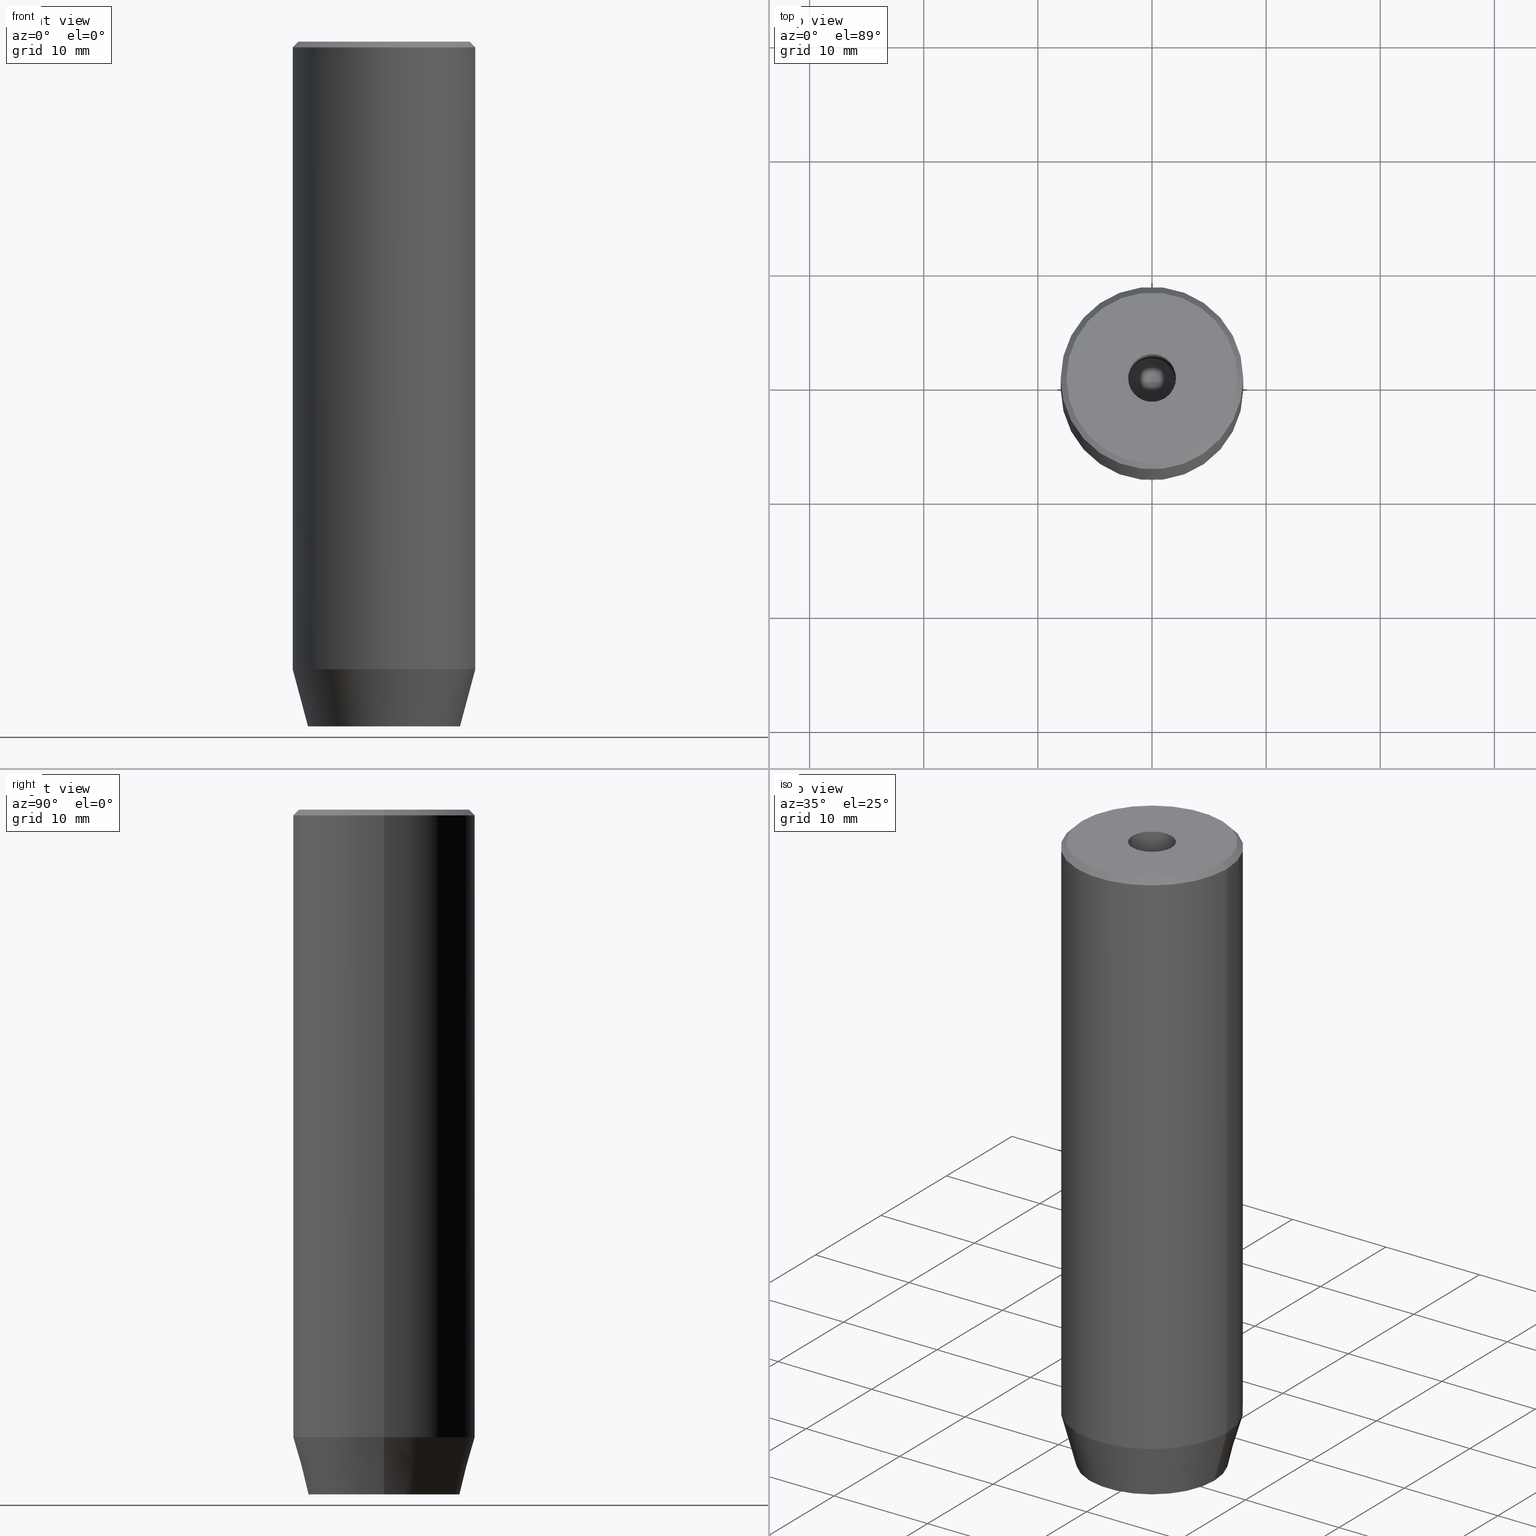
[diagram: canonical four-view strip — front | top / right | iso, engineering-drawing reading convention]
A machine part, canonical four-view strip (front | top / right | iso — engineering-drawing reading convention). The complete STEP part file that produces these views, byte-faithful:
ISO-10303-21;
HEADER;
FILE_DESCRIPTION (( 'STEP AP203' ),
    '1' );
FILE_NAME ('164c.STEP',
    '2024-01-02T20:40:58',
    ( '' ),
    ( '' ),
    'SwSTEP 2.0',
    'SolidWorks 2019',
    '' );
FILE_SCHEMA (( 'CONFIG_CONTROL_DESIGN' ));
ENDSEC;

DATA;
#1 = EDGE_LOOP ( 'NONE', ( #491, #107, #47, #19 ) ) ;
#2 = ADVANCED_FACE ( 'NONE', ( #153 ), #558, .F. ) ;
#3 = AXIS2_PLACEMENT_3D ( 'NONE', #354, #356, #173 ) ;
#4 = ORIENTED_EDGE ( 'NONE', *, *, #541, .T. ) ;
#5 = DIRECTION ( 'NONE',  ( -1.000000000000000000, -2.503857664561933362E-16, 0.000000000000000000 ) ) ;
#6 = ORIENTED_EDGE ( 'NONE', *, *, #259, .T. ) ;
#7 = CARTESIAN_POINT ( 'NONE',  ( -3.000000000000000444, -7.511572993685800087E-16, -57.20000000000000284 ) ) ;
#8 = ORIENTED_EDGE ( 'NONE', *, *, #297, .T. ) ;
#9 = APPROVAL_ROLE ( '' ) ;
#10 = CARTESIAN_POINT ( 'NONE',  ( 0.000000000000000000, 0.000000000000000000, -55.00000000000000000 ) ) ;
#11 = AXIS2_PLACEMENT_3D ( 'NONE', #179, #310, #532 ) ;
#12 = VECTOR ( 'NONE', #70, 1000.000000000000000 ) ;
#13 = PRODUCT_DEFINITION_SHAPE ( 'NONE', 'NONE',  #561 ) ;
#14 = ORIENTED_EDGE ( 'NONE', *, *, #227, .F. ) ;
#15 = PLANE ( 'NONE',  #400 ) ;
#16 = MANIFOLD_SOLID_BREP ( 'Vrt�k z�vitn�ku pro M5 z�vit1', #268 ) ;
#17 = COORDINATED_UNIVERSAL_TIME_OFFSET ( 1, 0, .AHEAD. ) ;
#18 = CARTESIAN_POINT ( 'NONE',  ( 0.000000000000000000, 0.000000000000000000, -20.00000000000000000 ) ) ;
#19 = ORIENTED_EDGE ( 'NONE', *, *, #21, .F. ) ;
#20 =( NAMED_UNIT ( * ) PLANE_ANGLE_UNIT ( ) SI_UNIT ( $, .RADIAN. ) );
#21 = EDGE_CURVE ( 'NONE', #264, #63, #364, .T. ) ;
#22 = AXIS2_PLACEMENT_3D ( 'NONE', #384, #195, #423 ) ;
#23 = LINE ( 'NONE', #113, #506 ) ;
#24 = APPROVAL_ROLE ( '' ) ;
#25 = LINE ( 'NONE', #379, #577 ) ;
#26 = CARTESIAN_POINT ( 'NONE',  ( 3.000000000000000000, 0.000000000000000000, -60.00000000000000000 ) ) ;
#27 = ORGANIZATION ( 'NEUR�EN�', 'NEUR�EN�', '' ) ;
#28 = ORIENTED_EDGE ( 'NONE', *, *, #515, .F. ) ;
#29 = EDGE_CURVE ( 'NONE', #323, #316, #23, .T. ) ;
#30 = VERTEX_POINT ( 'NONE', #569 ) ;
#31 = DIRECTION ( 'NONE',  ( 0.8660254037844385966, -0.5000000000000001110, 0.000000000000000000 ) ) ;
#32 = CIRCLE ( 'NONE', #300, 8.000000000000000000 ) ;
#33 = CARTESIAN_POINT ( 'NONE',  ( -3.000000000000000000, -1.732050807568877859, -57.20000000000000284 ) ) ;
#34 = CC_DESIGN_APPROVAL ( #101, ( #561 ) ) ;
#35 = COORDINATED_UNIVERSAL_TIME_OFFSET ( 1, 0, .AHEAD. ) ;
#36 = CARTESIAN_POINT ( 'NONE',  ( -1.500000000000000666, -2.598076211353316456, -57.20000000000000284 ) ) ;
#37 = ORIENTED_EDGE ( 'NONE', *, *, #253, .T. ) ;
#38 = ADVANCED_FACE ( 'NONE', ( #391 ), #166, .T. ) ;
#39 = CARTESIAN_POINT ( 'NONE',  ( -1.084202172485504434E-16, 3.464101615137754830, -57.20000000000000284 ) ) ;
#40 = EDGE_LOOP ( 'NONE', ( #500, #14, #545, #66 ) ) ;
#41 = AXIS2_PLACEMENT_3D ( 'NONE', #222, #122, #406 ) ;
#42 = AXIS2_PLACEMENT_3D ( 'NONE', #523, #172, #262 ) ;
#43 = APPROVAL ( #135, 'NEUR�EN�' ) ;
#44 = VERTEX_POINT ( 'NONE', #521 ) ;
#45 = LOCAL_TIME ( 21, 40, 58.00000000000000000, #53 ) ;
#46 = EDGE_CURVE ( 'NONE', #416, #539, #290, .T. ) ;
#47 = ORIENTED_EDGE ( 'NONE', *, *, #335, .T. ) ;
#48 = DIRECTION ( 'NONE',  ( -0.8660254037844385966, 0.5000000000000001110, 0.000000000000000000 ) ) ;
#49 = EDGE_LOOP ( 'NONE', ( #360, #341, #455, #183, #357, #366 ) ) ;
#50 = VECTOR ( 'NONE', #182, 1000.000000000000000 ) ;
#51 = AXIS2_PLACEMENT_3D ( 'NONE', #96, #415, #99 ) ;
#52 = ORIENTED_EDGE ( 'NONE', *, *, #480, .T. ) ;
#53 = COORDINATED_UNIVERSAL_TIME_OFFSET ( 1, 0, .AHEAD. ) ;
#54 =( LENGTH_UNIT ( ) NAMED_UNIT ( * ) SI_UNIT ( .MILLI., .METRE. ) );
#55 = CARTESIAN_POINT ( 'NONE',  ( 0.000000000000000000, 0.000000000000000000, -55.00000000000000000 ) ) ;
#56 = ORIENTED_EDGE ( 'NONE', *, *, #215, .T. ) ;
#57 = APPROVAL_STATUS ( 'not_yet_approved' ) ;
#58 = EDGE_CURVE ( 'NONE', #139, #264, #296, .T. ) ;
#59 = EDGE_LOOP ( 'NONE', ( #371, #131, #149, #116 ) ) ;
#60 = DIRECTION ( 'NONE',  ( 1.000000000000000000, 0.000000000000000000, 0.000000000000000000 ) ) ;
#61 = CARTESIAN_POINT ( 'NONE',  ( 0.000000000000000000, 0.000000000000000000, -60.00000000000000000 ) ) ;
#62 = VECTOR ( 'NONE', #133, 1000.000000000000000 ) ;
#63 = VERTEX_POINT ( 'NONE', #337 ) ;
#64 = DATE_TIME_ROLE ( 'creation_date' ) ;
#65 = CARTESIAN_POINT ( 'NONE',  ( 3.000000000000000000, -1.732050807568876527, -60.00000000000000000 ) ) ;
#66 = ORIENTED_EDGE ( 'NONE', *, *, #67, .T. ) ;
#67 = EDGE_CURVE ( 'NONE', #316, #487, #81, .T. ) ;
#68 = CALENDAR_DATE ( 2024, 2, 1 ) ;
#69 = DIRECTION ( 'NONE',  ( 0.7071067811865524577, 8.659560562354993255E-17, -0.7071067811865426878 ) ) ;
#70 = DIRECTION ( 'NONE',  ( 0.000000000000000000, -1.000000000000000000, 0.000000000000000000 ) ) ;
#71 = DIRECTION ( 'NONE',  ( -0.000000000000000000, 0.000000000000000000, -1.000000000000000000 ) ) ;
#72 = PERSON_AND_ORGANIZATION_ROLE ( 'design_owner' ) ;
#73 = DIRECTION ( 'NONE',  ( 1.000000000000000000, 0.000000000000000000, 0.000000000000000000 ) ) ;
#74 = CIRCLE ( 'NONE', #465, 2.099999999999998757 ) ;
#75 = CARTESIAN_POINT ( 'NONE',  ( 3.000000000000000000, 0.000000000000000000, -57.20000000000000284 ) ) ;
#76 = ORIENTED_EDGE ( 'NONE', *, *, #353, .T. ) ;
#77 = ADVANCED_FACE ( 'NONE', ( #472 ), #201, .F. ) ;
#78 = ORIENTED_EDGE ( 'NONE', *, *, #177, .F. ) ;
#79 = CARTESIAN_POINT ( 'NONE',  ( 3.000000000000000000, 0.000000000000000000, -57.20000000000000284 ) ) ;
#80 = DIRECTION ( 'NONE',  ( -0.5000000000000001110, -0.8660254037844385966, 0.000000000000000000 ) ) ;
#81 = CIRCLE ( 'NONE', #194, 2.099999999999998757 ) ;
#82 = VECTOR ( 'NONE', #339, 1000.000000000000000 ) ;
#83 = CARTESIAN_POINT ( 'NONE',  ( -3.000000000000000888, 1.732050807568876527, -57.20000000000000284 ) ) ;
#84 = EDGE_CURVE ( 'NONE', #44, #117, #170, .T. ) ;
#85 = ORIENTED_EDGE ( 'NONE', *, *, #311, .F. ) ;
#86 = CARTESIAN_POINT ( 'NONE',  ( -8.000000000000000000, 9.797174393178825657E-16, 0.000000000000000000 ) ) ;
#87 = DIRECTION ( 'NONE',  ( -0.000000000000000000, -0.000000000000000000, -1.000000000000000000 ) ) ;
#88 = VERTEX_POINT ( 'NONE', #575 ) ;
#89 = VECTOR ( 'NONE', #552, 1000.000000000000000 ) ;
#90 = EDGE_CURVE ( 'NONE', #63, #264, #32, .T. ) ;
#91 = DIRECTION ( 'NONE',  ( -0.000000000000000000, -0.000000000000000000, 1.000000000000000000 ) ) ;
#92 = FACE_OUTER_BOUND ( 'NONE', #584, .T. ) ;
#93 = ORIENTED_EDGE ( 'NONE', *, *, #327, .T. ) ;
#94 = DIRECTION ( 'NONE',  ( -0.000000000000000000, -0.000000000000000000, -1.000000000000000000 ) ) ;
#95 = DIRECTION ( 'NONE',  ( 0.8660254037844387076, 0.4999999999999999445, 0.000000000000000000 ) ) ;
#96 = CARTESIAN_POINT ( 'NONE',  ( 0.000000000000000000, 0.000000000000000000, -20.00000000000000000 ) ) ;
#97 = EDGE_LOOP ( 'NONE', ( #76, #103, #37, #147, #52, #563 ) ) ;
#98 = CARTESIAN_POINT ( 'NONE',  ( -7.500000000000007105, 0.000000000000000000, 0.000000000000000000 ) ) ;
#99 = DIRECTION ( 'NONE',  ( 1.000000000000000000, 0.000000000000000000, 0.000000000000000000 ) ) ;
#100 = VERTEX_POINT ( 'NONE', #39 ) ;
#101 = APPROVAL ( #57, 'NEUR�EN�' ) ;
#102 = APPROVAL_PERSON_ORGANIZATION ( #123, #43, #531 ) ;
#103 = ORIENTED_EDGE ( 'NONE', *, *, #425, .T. ) ;
#104 = CARTESIAN_POINT ( 'NONE',  ( 0.000000000000000000, 0.000000000000000000, 0.000000000000000000 ) ) ;
#105 = CC_DESIGN_PERSON_AND_ORGANIZATION_ASSIGNMENT ( #568, #164, ( #272 ) ) ;
#106 = DIRECTION ( 'NONE',  ( -0.000000000000000000, -0.000000000000000000, 1.000000000000000000 ) ) ;
#107 = ORIENTED_EDGE ( 'NONE', *, *, #522, .F. ) ;
#108 = ADVANCED_FACE ( 'NONE', ( #393 ), #349, .F. ) ;
#109 = VECTOR ( 'NONE', #494, 1000.000000000000114 ) ;
#110 = DIRECTION ( 'NONE',  ( -0.8660254037844385966, -0.5000000000000001110, 0.000000000000000000 ) ) ;
#111 = APPLICATION_PROTOCOL_DEFINITION ( 'international standard', 'config_control_design', 1994, #447 ) ;
#112 = LINE ( 'NONE', #468, #203 ) ;
#113 = CARTESIAN_POINT ( 'NONE',  ( 2.099999999999997424, 0.000000000000000000, 0.000000000000000000 ) ) ;
#114 =( NAMED_UNIT ( * ) SI_UNIT ( $, .STERADIAN. ) SOLID_ANGLE_UNIT ( ) );
#115 = PERSON_AND_ORGANIZATION ( #554, #27 ) ;
#116 = ORIENTED_EDGE ( 'NONE', *, *, #29, .F. ) ;
#117 = VERTEX_POINT ( 'NONE', #582 ) ;
#118 = LINE ( 'NONE', #460, #89 ) ;
#119 = AXIS2_PLACEMENT_3D ( 'NONE', #18, #559, #155 ) ;
#120 = ORIENTED_EDGE ( 'NONE', *, *, #21, .T. ) ;
#121 = DATE_AND_TIME ( #68, #553 ) ;
#122 = DIRECTION ( 'NONE',  ( -0.4999999999999999445, 0.8660254037844387076, 0.000000000000000000 ) ) ;
#123 = PERSON_AND_ORGANIZATION ( #554, #27 ) ;
#124 = ADVANCED_FACE ( 'NONE', ( #402 ), #218, .F. ) ;
#125 = DIRECTION ( 'NONE',  ( 0.8660254037844385966, -0.5000000000000001110, 0.000000000000000000 ) ) ;
#126 = AXIS2_PLACEMENT_3D ( 'NONE', #10, #334, #152 ) ;
#127 =( GEOMETRIC_REPRESENTATION_CONTEXT ( 3 ) GLOBAL_UNCERTAINTY_ASSIGNED_CONTEXT ( ( #211 ) ) GLOBAL_UNIT_ASSIGNED_CONTEXT ( ( #54, #20, #114 ) ) REPRESENTATION_CONTEXT ( 'NONE', 'WORKASPACE' ) );
#128 = ORIENTED_EDGE ( 'NONE', *, *, #551, .T. ) ;
#129 = FACE_OUTER_BOUND ( 'NONE', #557, .T. ) ;
#130 = CYLINDRICAL_SURFACE ( 'NONE', #154, 2.099999999999997424 ) ;
#131 = ORIENTED_EDGE ( 'NONE', *, *, #533, .T. ) ;
#132 = ADVANCED_FACE ( 'NONE', ( #359 ), #437, .F. ) ;
#133 = DIRECTION ( 'NONE',  ( -0.000000000000000000, -0.000000000000000000, 1.000000000000000000 ) ) ;
#134 = CARTESIAN_POINT ( 'NONE',  ( 0.000000000000000000, 0.000000000000000000, -57.20000000000000284 ) ) ;
#135 = APPROVAL_STATUS ( 'not_yet_approved' ) ;
#136 = ORIENTED_EDGE ( 'NONE', *, *, #551, .F. ) ;
#137 = VECTOR ( 'NONE', #318, 1000.000000000000000 ) ;
#138 = CC_DESIGN_PERSON_AND_ORGANIZATION_ASSIGNMENT ( #115, #432, ( #285 ) ) ;
#139 = VERTEX_POINT ( 'NONE', #397 ) ;
#140 = CARTESIAN_POINT ( 'NONE',  ( -1.499999999999999556, 2.598076211353316012, -57.20000000000000284 ) ) ;
#141 = ORIENTED_EDGE ( 'NONE', *, *, #90, .F. ) ;
#142 = CARTESIAN_POINT ( 'NONE',  ( 8.000000000000000000, 0.000000000000000000, -55.00000000000000000 ) ) ;
#143 = EDGE_CURVE ( 'NONE', #383, #229, #176, .T. ) ;
#144 = ORIENTED_EDGE ( 'NONE', *, *, #394, .T. ) ;
#145 = VECTOR ( 'NONE', #94, 1000.000000000000000 ) ;
#146 = APPROVAL ( #294, 'NEUR�EN�' ) ;
#147 = ORIENTED_EDGE ( 'NONE', *, *, #46, .T. ) ;
#148 = CARTESIAN_POINT ( 'NONE',  ( 0.000000000000000000, 0.000000000000000000, 0.000000000000000000 ) ) ;
#149 = ORIENTED_EDGE ( 'NONE', *, *, #435, .T. ) ;
#150 = PERSON_AND_ORGANIZATION_ROLE ( 'creator' ) ;
#151 = ADVANCED_FACE ( 'NONE', ( #576 ), #291, .T. ) ;
#152 = DIRECTION ( 'NONE',  ( 1.000000000000000000, 0.000000000000000000, 0.000000000000000000 ) ) ;
#153 = FACE_OUTER_BOUND ( 'NONE', #159, .T. ) ;
#154 = AXIS2_PLACEMENT_3D ( 'NONE', #275, #232, #587 ) ;
#155 = DIRECTION ( 'NONE',  ( 1.000000000000000000, 0.000000000000000000, 0.000000000000000000 ) ) ;
#156 = ORIENTED_EDGE ( 'NONE', *, *, #58, .T. ) ;
#157 = DIRECTION ( 'NONE',  ( 0.000000000000000000, 0.000000000000000000, 1.000000000000000000 ) ) ;
#158 = APPROVAL_PERSON_ORGANIZATION ( #427, #146, #24 ) ;
#159 = EDGE_LOOP ( 'NONE', ( #555, #517, #398 ) ) ;
#160 = ORIENTED_EDGE ( 'NONE', *, *, #46, .F. ) ;
#161 = ADVANCED_FACE ( 'NONE', ( #527 ), #130, .F. ) ;
#162 = VERTEX_POINT ( 'NONE', #192 ) ;
#163 = DIRECTION ( 'NONE',  ( 1.000000000000000000, 0.000000000000000000, 0.000000000000000000 ) ) ;
#164 = PERSON_AND_ORGANIZATION_ROLE ( 'creator' ) ;
#165 = VECTOR ( 'NONE', #581, 1000.000000000000000 ) ;
#166 = CYLINDRICAL_SURFACE ( 'NONE', #548, 8.000000000000000000 ) ;
#167 = APPROVAL_PERSON_ORGANIZATION ( #332, #101, #9 ) ;
#168 = DIRECTION ( 'NONE',  ( 1.000000000000000000, 0.000000000000000000, 0.000000000000000000 ) ) ;
#169 = EDGE_CURVE ( 'NONE', #416, #219, #370, .T. ) ;
#170 = LINE ( 'NONE', #261, #213 ) ;
#171 = CC_DESIGN_DATE_AND_TIME_ASSIGNMENT ( #524, #396, ( #285 ) ) ;
#172 = DIRECTION ( 'NONE',  ( -0.000000000000000000, -0.000000000000000000, 1.000000000000000000 ) ) ;
#173 = DIRECTION ( 'NONE',  ( -1.000000000000000000, 0.000000000000000000, 0.000000000000000000 ) ) ;
#174 = AXIS2_PLACEMENT_3D ( 'NONE', #148, #330, #376 ) ;
#175 = ORIENTED_EDGE ( 'NONE', *, *, #522, .T. ) ;
#176 = LINE ( 'NONE', #83, #570 ) ;
#177 = EDGE_CURVE ( 'NONE', #88, #411, #544, .T. ) ;
#178 = DIRECTION ( 'NONE',  ( 0.8660254037844387076, 0.4999999999999999445, 0.000000000000000000 ) ) ;
#179 = CARTESIAN_POINT ( 'NONE',  ( 1.500000000000000222, -2.598076211353315568, -57.20000000000000284 ) ) ;
#180 = EDGE_LOOP ( 'NONE', ( #287, #470, #156, #120 ) ) ;
#181 = CARTESIAN_POINT ( 'NONE',  ( -2.099999999999996092, 2.571758278209436534E-16, -20.00000000000000000 ) ) ;
#182 = DIRECTION ( 'NONE',  ( -0.7071067811865524577, 0.000000000000000000, -0.7071067811865426878 ) ) ;
#183 = ORIENTED_EDGE ( 'NONE', *, *, #361, .F. ) ;
#184 = AXIS2_PLACEMENT_3D ( 'NONE', #567, #390, #163 ) ;
#185 = DIRECTION ( 'NONE',  ( 2.503857664561933362E-16, -1.000000000000000000, 0.000000000000000000 ) ) ;
#186 = DIRECTION ( 'NONE',  ( 0.000000000000000000, -0.000000000000000000, 1.000000000000000000 ) ) ;
#187 = DIRECTION ( 'NONE',  ( -0.000000000000000000, -0.000000000000000000, -1.000000000000000000 ) ) ;
#188 = ORIENTED_EDGE ( 'NONE', *, *, #253, .F. ) ;
#189 = FACE_OUTER_BOUND ( 'NONE', #40, .T. ) ;
#190 = CC_DESIGN_PERSON_AND_ORGANIZATION_ASSIGNMENT ( #381, #72, ( #365 ) ) ;
#191 = ORIENTED_EDGE ( 'NONE', *, *, #327, .F. ) ;
#192 = CARTESIAN_POINT ( 'NONE',  ( -3.000000000000000000, -1.732050807568877859, -60.00000000000000000 ) ) ;
#193 = ORIENTED_EDGE ( 'NONE', *, *, #90, .T. ) ;
#194 = AXIS2_PLACEMENT_3D ( 'NONE', #250, #514, #428 ) ;
#195 = DIRECTION ( 'NONE',  ( -0.000000000000000000, -0.000000000000000000, 1.000000000000000000 ) ) ;
#196 = ORIENTED_EDGE ( 'NONE', *, *, #235, .F. ) ;
#197 = ADVANCED_FACE ( 'NONE', ( #325 ), #525, .F. ) ;
#198 = PERSON_AND_ORGANIZATION ( #554, #27 ) ;
#199 = CARTESIAN_POINT ( 'NONE',  ( 0.000000000000000000, 6.660254037844384634, -60.00000000000000000 ) ) ;
#200 = EDGE_LOOP ( 'NONE', ( #320, #191, #258, #387 ) ) ;
#201 = PLANE ( 'NONE',  #399 ) ;
#202 = FACE_OUTER_BOUND ( 'NONE', #224, .T. ) ;
#203 = VECTOR ( 'NONE', #256, 1000.000000000000000 ) ;
#204 = CARTESIAN_POINT ( 'NONE',  ( 0.000000000000000000, 0.000000000000000000, 0.000000000000000000 ) ) ;
#205 = DIRECTION ( 'NONE',  ( -0.8571673007021111124, 1.049727191138617217E-16, 0.5150380749100562650 ) ) ;
#206 = EDGE_CURVE ( 'NONE', #433, #323, #238, .T. ) ;
#207 = LINE ( 'NONE', #26, #12 ) ;
#208 = DIRECTION ( 'NONE',  ( -0.8660254037844385966, 0.5000000000000001110, 0.000000000000000000 ) ) ;
#209 = DIRECTION ( 'NONE',  ( 1.000000000000000000, 0.000000000000000000, 0.000000000000000000 ) ) ;
#210 = ADVANCED_BREP_SHAPE_REPRESENTATION ( '164c', ( #16, #542 ), #127 ) ;
#211 = UNCERTAINTY_MEASURE_WITH_UNIT (LENGTH_MEASURE( 1.000000000000000082E-05 ), #54, 'distance_accuracy_value', 'NONE');
#212 = LINE ( 'NONE', #33, #145 ) ;
#213 = VECTOR ( 'NONE', #125, 1000.000000000000000 ) ;
#214 = AXIS2_PLACEMENT_3D ( 'NONE', #216, #309, #306 ) ;
#215 = EDGE_CURVE ( 'NONE', #139, #411, #413, .T. ) ;
#216 = CARTESIAN_POINT ( 'NONE',  ( 1.500000000000000222, 2.598076211353315568, -57.20000000000000284 ) ) ;
#217 = CARTESIAN_POINT ( 'NONE',  ( 6.660254037844384634, 0.000000000000000000, -60.00000000000000000 ) ) ;
#218 = PLANE ( 'NONE',  #11 ) ;
#219 = VERTEX_POINT ( 'NONE', #65 ) ;
#220 = DIRECTION ( 'NONE',  ( 1.000000000000000000, 0.000000000000000000, 0.000000000000000000 ) ) ;
#221 = AXIS2_PLACEMENT_3D ( 'NONE', #436, #385, #209 ) ;
#222 = CARTESIAN_POINT ( 'NONE',  ( -1.499999999999999556, 2.598076211353316012, -57.20000000000000284 ) ) ;
#223 = VECTOR ( 'NONE', #355, 1000.000000000000000 ) ;
#224 = EDGE_LOOP ( 'NONE', ( #78, #4, #128, #241 ) ) ;
#225 = DIRECTION ( 'NONE',  ( 1.000000000000000000, 0.000000000000000000, 0.000000000000000000 ) ) ;
#226 = APPROVAL_DATE_TIME ( #574, #43 ) ;
#227 = EDGE_CURVE ( 'NONE', #323, #520, #292, .T. ) ;
#228 = CARTESIAN_POINT ( 'NONE',  ( 0.000000000000000000, 0.000000000000000000, -0.4999999999999866773 ) ) ;
#229 = VERTEX_POINT ( 'NONE', #510 ) ;
#230 = CYLINDRICAL_SURFACE ( 'NONE', #519, 2.099999999999997424 ) ;
#231 = DIRECTION ( 'NONE',  ( -1.000000000000000000, 0.000000000000000000, -0.000000000000000000 ) ) ;
#232 = DIRECTION ( 'NONE',  ( -0.000000000000000000, -0.000000000000000000, 1.000000000000000000 ) ) ;
#233 = CARTESIAN_POINT ( 'NONE',  ( -1.084202172485504434E-16, 3.464101615137754830, -57.20000000000000284 ) ) ;
#234 = EDGE_LOOP ( 'NONE', ( #56, #536, #193, #566 ) ) ;
#235 = EDGE_CURVE ( 'NONE', #277, #383, #112, .T. ) ;
#236 = ORIENTED_EDGE ( 'NONE', *, *, #394, .F. ) ;
#237 = CARTESIAN_POINT ( 'NONE',  ( -2.099999999999998757, 2.571758278209440478E-16, -1.990051048614449116E-16 ) ) ;
#238 = LINE ( 'NONE', #283, #489 ) ;
#239 = ORIENTED_EDGE ( 'NONE', *, *, #84, .T. ) ;
#240 = EDGE_CURVE ( 'NONE', #117, #219, #207, .T. ) ;
#241 = ORIENTED_EDGE ( 'NONE', *, *, #571, .F. ) ;
#242 = AXIS2_PLACEMENT_3D ( 'NONE', #36, #80, #31 ) ;
#243 = CALENDAR_DATE ( 2024, 2, 1 ) ;
#244 = CIRCLE ( 'NONE', #572, 7.500000000000007105 ) ;
#245 = FACE_OUTER_BOUND ( 'NONE', #303, .T. ) ;
#246 = DIRECTION ( 'NONE',  ( -0.000000000000000000, -0.000000000000000000, 1.000000000000000000 ) ) ;
#247 = VERTEX_POINT ( 'NONE', #217 ) ;
#248 = FACE_OUTER_BOUND ( 'NONE', #1, .T. ) ;
#249 = APPROVAL_DATE_TIME ( #121, #146 ) ;
#250 = CARTESIAN_POINT ( 'NONE',  ( 0.000000000000000000, 0.000000000000000000, -1.990051048614449116E-16 ) ) ;
#251 = CARTESIAN_POINT ( 'NONE',  ( -8.000000000000000000, 9.797174393178825657E-16, -55.00000000000000000 ) ) ;
#252 = ORIENTED_EDGE ( 'NONE', *, *, #417, .T. ) ;
#253 = EDGE_CURVE ( 'NONE', #414, #416, #350, .T. ) ;
#254 = LINE ( 'NONE', #516, #445 ) ;
#255 = AXIS2_PLACEMENT_3D ( 'NONE', #61, #471, #295 ) ;
#256 = DIRECTION ( 'NONE',  ( -2.503857664561932376E-16, 1.000000000000000000, 0.000000000000000000 ) ) ;
#257 = PERSON_AND_ORGANIZATION ( #554, #27 ) ;
#258 = ORIENTED_EDGE ( 'NONE', *, *, #353, .F. ) ;
#259 = EDGE_CURVE ( 'NONE', #162, #229, #530, .T. ) ;
#260 = VECTOR ( 'NONE', #440, 1000.000000000000000 ) ;
#261 = CARTESIAN_POINT ( 'NONE',  ( 1.500000000000000222, 2.598076211353315568, -60.00000000000000000 ) ) ;
#262 = DIRECTION ( 'NONE',  ( 1.000000000000000000, 0.000000000000000000, 0.000000000000000000 ) ) ;
#263 = DIRECTION ( 'NONE',  ( -0.000000000000000000, -0.000000000000000000, 1.000000000000000000 ) ) ;
#264 = VERTEX_POINT ( 'NONE', #438 ) ;
#265 = FACE_OUTER_BOUND ( 'NONE', #565, .T. ) ;
#266 = EDGE_CURVE ( 'NONE', #520, #323, #281, .T. ) ;
#267 = LINE ( 'NONE', #446, #333 ) ;
#268 = CLOSED_SHELL ( 'NONE', ( #161, #197, #151, #373, #38, #439, #342, #286, #382, #388, #108, #456, #132, #124, #77, #276, #322, #2, #462 ) ) ;
#269 = CONICAL_SURFACE ( 'NONE', #126, 8.000000000000000000, 0.2617993877991499074 ) ;
#270 = DIRECTION ( 'NONE',  ( -0.000000000000000000, -0.000000000000000000, 1.000000000000000000 ) ) ;
#271 = CARTESIAN_POINT ( 'NONE',  ( 2.099999999999996092, 0.000000000000000000, -20.00000000000000000 ) ) ;
#272 = PRODUCT_DEFINITION_FORMATION_WITH_SPECIFIED_SOURCE ( 'LIBOVOLN�', '', #365, .NOT_KNOWN. ) ;
#273 = ORIENTED_EDGE ( 'NONE', *, *, #206, .F. ) ;
#274 = CARTESIAN_POINT ( 'NONE',  ( 0.000000000000000000, 0.000000000000000000, 0.000000000000000000 ) ) ;
#275 = CARTESIAN_POINT ( 'NONE',  ( 0.000000000000000000, 0.000000000000000000, 0.000000000000000000 ) ) ;
#276 = ADVANCED_FACE ( 'NONE', ( #129 ), #313, .F. ) ;
#277 = VERTEX_POINT ( 'NONE', #352 ) ;
#278 = LINE ( 'NONE', #546, #62 ) ;
#279 = LINE ( 'NONE', #564, #82 ) ;
#280 = ORIENTED_EDGE ( 'NONE', *, *, #361, .T. ) ;
#281 = CIRCLE ( 'NONE', #42, 2.099999999999996092 ) ;
#282 = CARTESIAN_POINT ( 'NONE',  ( 0.000000000000000000, 0.000000000000000000, -55.00000000000000000 ) ) ;
#283 = CARTESIAN_POINT ( 'NONE',  ( 2.099999999999996092, 0.000000000000000000, -20.00000000000000000 ) ) ;
#284 = ORIENTED_EDGE ( 'NONE', *, *, #444, .F. ) ;
#285 = SECURITY_CLASSIFICATION ( '', '', #307 ) ;
#286 = ADVANCED_FACE ( 'NONE', ( #483 ), #395, .T. ) ;
#287 = ORIENTED_EDGE ( 'NONE', *, *, #502, .F. ) ;
#288 = MECHANICAL_CONTEXT ( 'NONE', #447, 'mechanical' ) ;
#289 = DIRECTION ( 'NONE',  ( 1.000000000000000000, 0.000000000000000000, 0.000000000000000000 ) ) ;
#290 = LINE ( 'NONE', #511, #463 ) ;
#291 = CONICAL_SURFACE ( 'NONE', #3, 7.500000000000007105, 0.7853981633974552734 ) ;
#292 = CIRCLE ( 'NONE', #119, 2.099999999999996092 ) ;
#293 = ORIENTED_EDGE ( 'NONE', *, *, #240, .T. ) ;
#294 = APPROVAL_STATUS ( 'not_yet_approved' ) ;
#295 = DIRECTION ( 'NONE',  ( 1.000000000000000000, 0.000000000000000000, 0.000000000000000000 ) ) ;
#296 = LINE ( 'NONE', #466, #443 ) ;
#297 = EDGE_CURVE ( 'NONE', #414, #117, #401, .T. ) ;
#298 = EDGE_LOOP ( 'NONE', ( #293, #338, #188, #8 ) ) ;
#299 = DIRECTION ( 'NONE',  ( -0.000000000000000000, -0.000000000000000000, 1.000000000000000000 ) ) ;
#300 = AXIS2_PLACEMENT_3D ( 'NONE', #228, #308, #168 ) ;
#301 = ORIENTED_EDGE ( 'NONE', *, *, #169, .T. ) ;
#302 = CONICAL_SURFACE ( 'NONE', #22, 8.000000000000000000, 0.2617993877991499074 ) ;
#303 = EDGE_LOOP ( 'NONE', ( #236, #331 ) ) ;
#304 = EDGE_CURVE ( 'NONE', #534, #162, #267, .T. ) ;
#305 = AXIS2_PLACEMENT_3D ( 'NONE', #452, #270, #457 ) ;
#306 = DIRECTION ( 'NONE',  ( -0.8660254037844385966, 0.5000000000000001110, 0.000000000000000000 ) ) ;
#307 = SECURITY_CLASSIFICATION_LEVEL ( 'unclassified' ) ;
#308 = DIRECTION ( 'NONE',  ( 0.000000000000000000, 0.000000000000000000, -1.000000000000000000 ) ) ;
#309 = DIRECTION ( 'NONE',  ( 0.5000000000000001110, 0.8660254037844385966, -0.000000000000000000 ) ) ;
#310 = DIRECTION ( 'NONE',  ( 0.5000000000000001110, -0.8660254037844385966, 0.000000000000000000 ) ) ;
#311 = EDGE_CURVE ( 'NONE', #30, #580, #326, .T. ) ;
#312 = CARTESIAN_POINT ( 'NONE',  ( -1.500000000000000666, -2.598076211353316456, -57.20000000000000284 ) ) ;
#313 = PLANE ( 'NONE',  #214 ) ;
#314 = CALENDAR_DATE ( 2024, 2, 1 ) ;
#315 = DIRECTION ( 'NONE',  ( -0.000000000000000000, -0.000000000000000000, -1.000000000000000000 ) ) ;
#316 = VERTEX_POINT ( 'NONE', #345 ) ;
#317 = LINE ( 'NONE', #86, #319 ) ;
#318 = DIRECTION ( 'NONE',  ( -0.000000000000000000, -0.000000000000000000, -1.000000000000000000 ) ) ;
#319 = VECTOR ( 'NONE', #409, 1000.000000000000000 ) ;
#320 = ORIENTED_EDGE ( 'NONE', *, *, #495, .T. ) ;
#321 = DIRECTION ( 'NONE',  ( -0.000000000000000000, -0.000000000000000000, 1.000000000000000000 ) ) ;
#322 = ADVANCED_FACE ( 'NONE', ( #358 ), #498, .T. ) ;
#323 = VERTEX_POINT ( 'NONE', #271 ) ;
#324 = EDGE_LOOP ( 'NONE', ( #280, #28, #160, #301 ) ) ;
#325 = FACE_OUTER_BOUND ( 'NONE', #550, .T. ) ;
#326 = CIRCLE ( 'NONE', #184, 7.500000000000007105 ) ;
#327 = EDGE_CURVE ( 'NONE', #100, #44, #418, .T. ) ;
#328 = CARTESIAN_POINT ( 'NONE',  ( -5.207640850796248781E-15, 0.000000000000000000, -21.26180729995787999 ) ) ;
#329 = COORDINATED_UNIVERSAL_TIME_OFFSET ( 1, 0, .AHEAD. ) ;
#330 = DIRECTION ( 'NONE',  ( 0.000000000000000000, 0.000000000000000000, -1.000000000000000000 ) ) ;
#331 = ORIENTED_EDGE ( 'NONE', *, *, #541, .F. ) ;
#332 = PERSON_AND_ORGANIZATION ( #554, #27 ) ;
#333 = VECTOR ( 'NONE', #208, 1000.000000000000000 ) ;
#334 = DIRECTION ( 'NONE',  ( -0.000000000000000000, -0.000000000000000000, 1.000000000000000000 ) ) ;
#335 = EDGE_CURVE ( 'NONE', #580, #63, #490, .T. ) ;
#336 = DIRECTION ( 'NONE',  ( 1.000000000000000000, 0.000000000000000000, 0.000000000000000000 ) ) ;
#337 = CARTESIAN_POINT ( 'NONE',  ( -8.000000000000000000, 9.797174393178825657E-16, -0.4999999999999866773 ) ) ;
#338 = ORIENTED_EDGE ( 'NONE', *, *, #169, .F. ) ;
#339 = DIRECTION ( 'NONE',  ( -0.8660254037844385966, -0.5000000000000001110, 0.000000000000000000 ) ) ;
#340 = PERSON_AND_ORGANIZATION_ROLE ( 'design_supplier' ) ;
#341 = ORIENTED_EDGE ( 'NONE', *, *, #259, .F. ) ;
#342 = ADVANCED_FACE ( 'NONE', ( #363, #92 ), #493, .T. ) ;
#343 = ORIENTED_EDGE ( 'NONE', *, *, #143, .F. ) ;
#344 = AXIS2_PLACEMENT_3D ( 'NONE', #55, #419, #73 ) ;
#345 = CARTESIAN_POINT ( 'NONE',  ( 2.099999999999998757, 0.000000000000000000, -1.990051048614449116E-16 ) ) ;
#346 = DIRECTION ( 'NONE',  ( 1.000000000000000000, 0.000000000000000000, 0.000000000000000000 ) ) ;
#347 = CARTESIAN_POINT ( 'NONE',  ( -3.000000000000000444, -7.511572993685800087E-16, -60.00000000000000000 ) ) ;
#348 = SHAPE_DEFINITION_REPRESENTATION ( #13, #210 ) ;
#349 = PLANE ( 'NONE',  #41 ) ;
#350 = LINE ( 'NONE', #79, #223 ) ;
#351 = CONICAL_SURFACE ( 'NONE', #174, 7.500000000000007105, 0.7853981633974552734 ) ;
#352 = CARTESIAN_POINT ( 'NONE',  ( -3.000000000000000000, -1.732050807568877859, -57.20000000000000284 ) ) ;
#353 = EDGE_CURVE ( 'NONE', #383, #100, #543, .T. ) ;
#354 = CARTESIAN_POINT ( 'NONE',  ( 0.000000000000000000, 0.000000000000000000, 0.000000000000000000 ) ) ;
#355 = DIRECTION ( 'NONE',  ( 0.000000000000000000, -1.000000000000000000, 0.000000000000000000 ) ) ;
#356 = DIRECTION ( 'NONE',  ( 0.000000000000000000, 0.000000000000000000, -1.000000000000000000 ) ) ;
#357 = ORIENTED_EDGE ( 'NONE', *, *, #240, .F. ) ;
#358 = FACE_OUTER_BOUND ( 'NONE', #97, .T. ) ;
#359 = FACE_OUTER_BOUND ( 'NONE', #441, .T. ) ;
#360 = ORIENTED_EDGE ( 'NONE', *, *, #495, .F. ) ;
#361 = EDGE_CURVE ( 'NONE', #219, #534, #279, .T. ) ;
#362 = CARTESIAN_POINT ( 'NONE',  ( -2.168404344971008868E-16, -3.464101615137754830, -60.00000000000000000 ) ) ;
#363 = FACE_BOUND ( 'NONE', #450, .T. ) ;
#364 = CIRCLE ( 'NONE', #221, 8.000000000000000000 ) ;
#365 = PRODUCT ( '164c', '164c', '', ( #288 ) ) ;
#366 = ORIENTED_EDGE ( 'NONE', *, *, #84, .F. ) ;
#367 = DIRECTION ( 'NONE',  ( 1.000000000000000000, 0.000000000000000000, 0.000000000000000000 ) ) ;
#368 = CARTESIAN_POINT ( 'NONE',  ( 3.000000000000000000, -1.732050807568876527, -57.20000000000000284 ) ) ;
#369 = LINE ( 'NONE', #312, #421 ) ;
#370 = LINE ( 'NONE', #368, #412 ) ;
#371 = ORIENTED_EDGE ( 'NONE', *, *, #266, .F. ) ;
#372 = CARTESIAN_POINT ( 'NONE',  ( 0.000000000000000000, 0.000000000000000000, 0.000000000000000000 ) ) ;
#373 = ADVANCED_FACE ( 'NONE', ( #420 ), #269, .T. ) ;
#374 = ORIENTED_EDGE ( 'NONE', *, *, #177, .T. ) ;
#375 = AXIS2_PLACEMENT_3D ( 'NONE', #274, #186, #367 ) ;
#376 = DIRECTION ( 'NONE',  ( -1.000000000000000000, 0.000000000000000000, 0.000000000000000000 ) ) ;
#377 = EDGE_LOOP ( 'NONE', ( #85, #380, #141, #478 ) ) ;
#378 = CC_DESIGN_SECURITY_CLASSIFICATION ( #285, ( #272 ) ) ;
#379 = CARTESIAN_POINT ( 'NONE',  ( -2.099999999999996092, 2.571758278209436534E-16, -20.00000000000000000 ) ) ;
#380 = ORIENTED_EDGE ( 'NONE', *, *, #407, .T. ) ;
#381 = PERSON_AND_ORGANIZATION ( #554, #27 ) ;
#382 = ADVANCED_FACE ( 'NONE', ( #202 ), #302, .T. ) ;
#383 = VERTEX_POINT ( 'NONE', #513 ) ;
#384 = CARTESIAN_POINT ( 'NONE',  ( 0.000000000000000000, 0.000000000000000000, -55.00000000000000000 ) ) ;
#385 = DIRECTION ( 'NONE',  ( 0.000000000000000000, 0.000000000000000000, -1.000000000000000000 ) ) ;
#386 = CIRCLE ( 'NONE', #405, 8.000000000000000000 ) ;
#387 = ORIENTED_EDGE ( 'NONE', *, *, #143, .T. ) ;
#388 = ADVANCED_FACE ( 'NONE', ( #248 ), #351, .T. ) ;
#389 = ORIENTED_EDGE ( 'NONE', *, *, #425, .F. ) ;
#390 = DIRECTION ( 'NONE',  ( -0.000000000000000000, -0.000000000000000000, 1.000000000000000000 ) ) ;
#391 = FACE_OUTER_BOUND ( 'NONE', #234, .T. ) ;
#392 = CIRCLE ( 'NONE', #305, 6.660254037844384634 ) ;
#393 = FACE_OUTER_BOUND ( 'NONE', #200, .T. ) ;
#394 = EDGE_CURVE ( 'NONE', #247, #88, #454, .T. ) ;
#395 = CYLINDRICAL_SURFACE ( 'NONE', #549, 8.000000000000000000 ) ;
#396 = DATE_TIME_ROLE ( 'classification_date' ) ;
#397 = CARTESIAN_POINT ( 'NONE',  ( 8.000000000000000000, 0.000000000000000000, -55.00000000000000000 ) ) ;
#398 = ORIENTED_EDGE ( 'NONE', *, *, #227, .T. ) ;
#399 = AXIS2_PLACEMENT_3D ( 'NONE', #75, #469, #71 ) ;
#400 = AXIS2_PLACEMENT_3D ( 'NONE', #199, #479, #481 ) ;
#401 = LINE ( 'NONE', #486, #482 ) ;
#402 = FACE_OUTER_BOUND ( 'NONE', #324, .T. ) ;
#403 = ORIENTED_EDGE ( 'NONE', *, *, #304, .T. ) ;
#404 = LINE ( 'NONE', #540, #165 ) ;
#405 = AXIS2_PLACEMENT_3D ( 'NONE', #282, #91, #451 ) ;
#406 = DIRECTION ( 'NONE',  ( -0.8660254037844387076, -0.4999999999999999445, 0.000000000000000000 ) ) ;
#407 = EDGE_CURVE ( 'NONE', #30, #264, #254, .T. ) ;
#408 = ORIENTED_EDGE ( 'NONE', *, *, #311, .T. ) ;
#409 = DIRECTION ( 'NONE',  ( -0.000000000000000000, -0.000000000000000000, 1.000000000000000000 ) ) ;
#410 = CARTESIAN_POINT ( 'NONE',  ( -7.500000000000007105, 0.000000000000000000, 0.000000000000000000 ) ) ;
#411 = VERTEX_POINT ( 'NONE', #251 ) ;
#412 = VECTOR ( 'NONE', #187, 1000.000000000000000 ) ;
#413 = CIRCLE ( 'NONE', #344, 8.000000000000000000 ) ;
#414 = VERTEX_POINT ( 'NONE', #560 ) ;
#415 = DIRECTION ( 'NONE',  ( -0.000000000000000000, -0.000000000000000000, 1.000000000000000000 ) ) ;
#416 = VERTEX_POINT ( 'NONE', #431 ) ;
#417 = EDGE_CURVE ( 'NONE', #433, #520, #25, .T. ) ;
#418 = LINE ( 'NONE', #233, #137 ) ;
#419 = DIRECTION ( 'NONE',  ( -0.000000000000000000, -0.000000000000000000, 1.000000000000000000 ) ) ;
#420 = FACE_OUTER_BOUND ( 'NONE', #504, .T. ) ;
#421 = VECTOR ( 'NONE', #48, 1000.000000000000000 ) ;
#422 = DATE_AND_TIME ( #243, #477 ) ;
#423 = DIRECTION ( 'NONE',  ( 1.000000000000000000, 0.000000000000000000, 0.000000000000000000 ) ) ;
#424 = DIRECTION ( 'NONE',  ( -0.000000000000000000, -0.000000000000000000, 1.000000000000000000 ) ) ;
#425 = EDGE_CURVE ( 'NONE', #100, #414, #118, .T. ) ;
#426 = CC_DESIGN_APPROVAL ( #146, ( #272 ) ) ;
#427 = PERSON_AND_ORGANIZATION ( #554, #27 ) ;
#428 = DIRECTION ( 'NONE',  ( 1.000000000000000000, 0.000000000000000000, 0.000000000000000000 ) ) ;
#429 = ORIENTED_EDGE ( 'NONE', *, *, #215, .F. ) ;
#430 = DATE_AND_TIME ( #505, #529 ) ;
#431 = CARTESIAN_POINT ( 'NONE',  ( 3.000000000000000000, -1.732050807568876527, -57.20000000000000284 ) ) ;
#432 = PERSON_AND_ORGANIZATION_ROLE ( 'classification_officer' ) ;
#433 = VERTEX_POINT ( 'NONE', #328 ) ;
#434 = LOCAL_TIME ( 21, 40, 58.00000000000000000, #35 ) ;
#435 = EDGE_CURVE ( 'NONE', #487, #316, #74, .T. ) ;
#436 = CARTESIAN_POINT ( 'NONE',  ( 0.000000000000000000, 0.000000000000000000, -0.4999999999999866773 ) ) ;
#437 = PLANE ( 'NONE',  #242 ) ;
#438 = CARTESIAN_POINT ( 'NONE',  ( 8.000000000000000000, 0.000000000000000000, -0.4999999999999866773 ) ) ;
#439 = ADVANCED_FACE ( 'NONE', ( #461, #245 ), #15, .T. ) ;
#440 = DIRECTION ( 'NONE',  ( -2.503857664561932376E-16, 1.000000000000000000, 0.000000000000000000 ) ) ;
#441 = EDGE_LOOP ( 'NONE', ( #403, #284, #475, #448 ) ) ;
#442 = DIRECTION ( 'NONE',  ( -0.000000000000000000, -0.000000000000000000, 1.000000000000000000 ) ) ;
#443 = VECTOR ( 'NONE', #424, 1000.000000000000000 ) ;
#444 = EDGE_CURVE ( 'NONE', #277, #162, #212, .T. ) ;
#445 = VECTOR ( 'NONE', #69, 1000.000000000000000 ) ;
#446 = CARTESIAN_POINT ( 'NONE',  ( -1.500000000000000666, -2.598076211353316456, -60.00000000000000000 ) ) ;
#447 = APPLICATION_CONTEXT ( 'configuration controlled 3d designs of mechanical parts and assemblies' ) ;
#448 = ORIENTED_EDGE ( 'NONE', *, *, #515, .T. ) ;
#449 = LINE ( 'NONE', #485, #538 ) ;
#450 = EDGE_LOOP ( 'NONE', ( #496, #528 ) ) ;
#451 = DIRECTION ( 'NONE',  ( 1.000000000000000000, 0.000000000000000000, 0.000000000000000000 ) ) ;
#452 = CARTESIAN_POINT ( 'NONE',  ( 0.000000000000000000, 0.000000000000000000, -60.00000000000000000 ) ) ;
#453 = AXIS2_PLACEMENT_3D ( 'NONE', #562, #507, #336 ) ;
#454 = CIRCLE ( 'NONE', #255, 6.660254037844384634 ) ;
#455 = ORIENTED_EDGE ( 'NONE', *, *, #304, .F. ) ;
#456 = ADVANCED_FACE ( 'NONE', ( #265 ), #535, .F. ) ;
#457 = DIRECTION ( 'NONE',  ( 1.000000000000000000, 0.000000000000000000, 0.000000000000000000 ) ) ;
#458 = DIRECTION ( 'NONE',  ( 0.8571673007021111124, 0.000000000000000000, 0.5150380749100562650 ) ) ;
#459 = ORIENTED_EDGE ( 'NONE', *, *, #266, .T. ) ;
#460 = CARTESIAN_POINT ( 'NONE',  ( 1.500000000000000222, 2.598076211353315568, -57.20000000000000284 ) ) ;
#461 = FACE_BOUND ( 'NONE', #49, .T. ) ;
#462 = ADVANCED_FACE ( 'NONE', ( #189 ), #230, .F. ) ;
#463 = VECTOR ( 'NONE', #110, 1000.000000000000000 ) ;
#464 = ORIENTED_EDGE ( 'NONE', *, *, #444, .T. ) ;
#465 = AXIS2_PLACEMENT_3D ( 'NONE', #503, #106, #289 ) ;
#466 = CARTESIAN_POINT ( 'NONE',  ( 8.000000000000000000, 0.000000000000000000, 0.000000000000000000 ) ) ;
#467 = APPLICATION_PROTOCOL_DEFINITION ( 'international standard', 'config_control_design', 1994, #547 ) ;
#468 = CARTESIAN_POINT ( 'NONE',  ( -3.000000000000000444, -7.511572993685800087E-16, -57.20000000000000284 ) ) ;
#469 = DIRECTION ( 'NONE',  ( 1.000000000000000000, 0.000000000000000000, -0.000000000000000000 ) ) ;
#470 = ORIENTED_EDGE ( 'NONE', *, *, #571, .T. ) ;
#471 = DIRECTION ( 'NONE',  ( -0.000000000000000000, -0.000000000000000000, 1.000000000000000000 ) ) ;
#472 = FACE_OUTER_BOUND ( 'NONE', #298, .T. ) ;
#473 = AXIS2_PLACEMENT_3D ( 'NONE', #7, #5, #185 ) ;
#474 = CC_DESIGN_DATE_AND_TIME_ASSIGNMENT ( #430, #64, ( #561 ) ) ;
#475 = ORIENTED_EDGE ( 'NONE', *, *, #480, .F. ) ;
#476 = ORIENTED_EDGE ( 'NONE', *, *, #297, .F. ) ;
#477 = LOCAL_TIME ( 21, 40, 58.00000000000000000, #509 ) ;
#478 = ORIENTED_EDGE ( 'NONE', *, *, #335, .F. ) ;
#479 = DIRECTION ( 'NONE',  ( 0.000000000000000000, 0.000000000000000000, -1.000000000000000000 ) ) ;
#480 = EDGE_CURVE ( 'NONE', #539, #277, #369, .T. ) ;
#481 = DIRECTION ( 'NONE',  ( -1.000000000000000000, 0.000000000000000000, -0.000000000000000000 ) ) ;
#482 = VECTOR ( 'NONE', #87, 1000.000000000000000 ) ;
#483 = FACE_OUTER_BOUND ( 'NONE', #180, .T. ) ;
#484 = CC_DESIGN_APPROVAL ( #43, ( #285 ) ) ;
#485 = CARTESIAN_POINT ( 'NONE',  ( -1.499999999999999556, 2.598076211353316012, -60.00000000000000000 ) ) ;
#486 = CARTESIAN_POINT ( 'NONE',  ( 3.000000000000000000, 1.732050807568876527, -57.20000000000000284 ) ) ;
#487 = VERTEX_POINT ( 'NONE', #237 ) ;
#488 = CARTESIAN_POINT ( 'NONE',  ( -2.168404344971008868E-16, -3.464101615137754830, -57.20000000000000284 ) ) ;
#489 = VECTOR ( 'NONE', #458, 1000.000000000000000 ) ;
#490 = LINE ( 'NONE', #410, #50 ) ;
#491 = ORIENTED_EDGE ( 'NONE', *, *, #407, .F. ) ;
#492 = DIRECTION ( 'NONE',  ( 1.000000000000000000, 0.000000000000000000, 0.000000000000000000 ) ) ;
#493 = PLANE ( 'NONE',  #375 ) ;
#494 = DIRECTION ( 'NONE',  ( -0.2588190451025211836, 3.169619151431770488E-17, 0.9659258262890680902 ) ) ;
#495 = EDGE_CURVE ( 'NONE', #229, #44, #449, .T. ) ;
#496 = ORIENTED_EDGE ( 'NONE', *, *, #67, .F. ) ;
#497 = DIRECTION ( 'NONE',  ( 0.2588190451025211836, 0.000000000000000000, 0.9659258262890680902 ) ) ;
#498 = PLANE ( 'NONE',  #499 ) ;
#499 = AXIS2_PLACEMENT_3D ( 'NONE', #134, #586, #231 ) ;
#500 = ORIENTED_EDGE ( 'NONE', *, *, #533, .F. ) ;
#501 = CARTESIAN_POINT ( 'NONE',  ( -8.000000000000000000, 9.797174393178825657E-16, -55.00000000000000000 ) ) ;
#502 = EDGE_CURVE ( 'NONE', #411, #63, #317, .T. ) ;
#503 = CARTESIAN_POINT ( 'NONE',  ( 0.000000000000000000, 0.000000000000000000, -1.990051048614449116E-16 ) ) ;
#504 = EDGE_LOOP ( 'NONE', ( #144, #374, #429, #136 ) ) ;
#505 = CALENDAR_DATE ( 2024, 2, 1 ) ;
#506 = VECTOR ( 'NONE', #299, 1000.000000000000000 ) ;
#507 = DIRECTION ( 'NONE',  ( -0.000000000000000000, -0.000000000000000000, 1.000000000000000000 ) ) ;
#508 = VECTOR ( 'NONE', #95, 999.9999999999998863 ) ;
#509 = COORDINATED_UNIVERSAL_TIME_OFFSET ( 1, 0, .AHEAD. ) ;
#510 = CARTESIAN_POINT ( 'NONE',  ( -3.000000000000000888, 1.732050807568876527, -60.00000000000000000 ) ) ;
#511 = CARTESIAN_POINT ( 'NONE',  ( 1.500000000000000222, -2.598076211353315568, -57.20000000000000284 ) ) ;
#512 = VECTOR ( 'NONE', #497, 1000.000000000000114 ) ;
#513 = CARTESIAN_POINT ( 'NONE',  ( -3.000000000000000888, 1.732050807568876527, -57.20000000000000284 ) ) ;
#514 = DIRECTION ( 'NONE',  ( -0.000000000000000000, -0.000000000000000000, 1.000000000000000000 ) ) ;
#515 = EDGE_CURVE ( 'NONE', #539, #534, #404, .T. ) ;
#516 = CARTESIAN_POINT ( 'NONE',  ( 7.500000000000007105, 9.184850993605157805E-16, 0.000000000000000000 ) ) ;
#517 = ORIENTED_EDGE ( 'NONE', *, *, #206, .T. ) ;
#518 = PRODUCT_RELATED_PRODUCT_CATEGORY ( 'detail', '', ( #365 ) ) ;
#519 = AXIS2_PLACEMENT_3D ( 'NONE', #372, #321, #225 ) ;
#520 = VERTEX_POINT ( 'NONE', #181 ) ;
#521 = CARTESIAN_POINT ( 'NONE',  ( -2.168404344971008868E-16, 3.464101615137753942, -60.00000000000000000 ) ) ;
#522 = EDGE_CURVE ( 'NONE', #580, #30, #244, .T. ) ;
#523 = CARTESIAN_POINT ( 'NONE',  ( 0.000000000000000000, 0.000000000000000000, -20.00000000000000000 ) ) ;
#524 = DATE_AND_TIME ( #526, #45 ) ;
#525 = CONICAL_SURFACE ( 'NONE', #51, 2.099999999999996092, 1.029744258676652091 ) ;
#526 = CALENDAR_DATE ( 2024, 2, 1 ) ;
#527 = FACE_OUTER_BOUND ( 'NONE', #59, .T. ) ;
#528 = ORIENTED_EDGE ( 'NONE', *, *, #435, .F. ) ;
#529 = LOCAL_TIME ( 21, 40, 58.00000000000000000, #329 ) ;
#530 = LINE ( 'NONE', #347, #260 ) ;
#531 = APPROVAL_ROLE ( '' ) ;
#532 = DIRECTION ( 'NONE',  ( 0.8660254037844385966, 0.5000000000000001110, 0.000000000000000000 ) ) ;
#533 = EDGE_CURVE ( 'NONE', #520, #487, #278, .T. ) ;
#534 = VERTEX_POINT ( 'NONE', #362 ) ;
#535 = PLANE ( 'NONE',  #473 ) ;
#536 = ORIENTED_EDGE ( 'NONE', *, *, #502, .T. ) ;
#537 = LINE ( 'NONE', #142, #512 ) ;
#538 = VECTOR ( 'NONE', #178, 999.9999999999998863 ) ;
#539 = VERTEX_POINT ( 'NONE', #488 ) ;
#540 = CARTESIAN_POINT ( 'NONE',  ( -2.168404344971008868E-16, -3.464101615137754830, -57.20000000000000284 ) ) ;
#541 = EDGE_CURVE ( 'NONE', #88, #247, #392, .T. ) ;
#542 = AXIS2_PLACEMENT_3D ( 'NONE', #104, #157, #60 ) ;
#543 = LINE ( 'NONE', #140, #508 ) ;
#544 = LINE ( 'NONE', #501, #109 ) ;
#545 = ORIENTED_EDGE ( 'NONE', *, *, #29, .T. ) ;
#546 = CARTESIAN_POINT ( 'NONE',  ( -2.099999999999997424, 2.571758278209438506E-16, 0.000000000000000000 ) ) ;
#547 = APPLICATION_CONTEXT ( 'configuration controlled 3d designs of mechanical parts and assemblies' ) ;
#548 = AXIS2_PLACEMENT_3D ( 'NONE', #204, #246, #346 ) ;
#549 = AXIS2_PLACEMENT_3D ( 'NONE', #578, #263, #220 ) ;
#550 = EDGE_LOOP ( 'NONE', ( #273, #252, #459 ) ) ;
#551 = EDGE_CURVE ( 'NONE', #247, #139, #537, .T. ) ;
#552 = DIRECTION ( 'NONE',  ( 0.8660254037844385966, -0.5000000000000001110, 0.000000000000000000 ) ) ;
#553 = LOCAL_TIME ( 21, 40, 58.00000000000000000, #17 ) ;
#554 = PERSON ( 'NEUR�EN�', 'NEUR�EN�', 'NEUR�EN�', ('NEUR�EN�'), ('NEUR�EN�'), ('NEUR�EN�') ) ;
#555 = ORIENTED_EDGE ( 'NONE', *, *, #417, .F. ) ;
#556 = APPROVAL_DATE_TIME ( #422, #101 ) ;
#557 = EDGE_LOOP ( 'NONE', ( #239, #476, #389, #93 ) ) ;
#558 = CONICAL_SURFACE ( 'NONE', #453, 2.099999999999996092, 1.029744258676652091 ) ;
#559 = DIRECTION ( 'NONE',  ( -0.000000000000000000, -0.000000000000000000, 1.000000000000000000 ) ) ;
#560 = CARTESIAN_POINT ( 'NONE',  ( 3.000000000000000000, 1.732050807568876527, -57.20000000000000284 ) ) ;
#561 = PRODUCT_DEFINITION ( 'NEZN�M�', '', #272, #573 ) ;
#562 = CARTESIAN_POINT ( 'NONE',  ( 0.000000000000000000, 0.000000000000000000, -20.00000000000000000 ) ) ;
#563 = ORIENTED_EDGE ( 'NONE', *, *, #235, .T. ) ;
#564 = CARTESIAN_POINT ( 'NONE',  ( 1.500000000000000222, -2.598076211353315568, -60.00000000000000000 ) ) ;
#565 = EDGE_LOOP ( 'NONE', ( #6, #343, #196, #464 ) ) ;
#566 = ORIENTED_EDGE ( 'NONE', *, *, #58, .F. ) ;
#567 = CARTESIAN_POINT ( 'NONE',  ( 0.000000000000000000, 0.000000000000000000, 0.000000000000000000 ) ) ;
#568 = PERSON_AND_ORGANIZATION ( #554, #27 ) ;
#569 = CARTESIAN_POINT ( 'NONE',  ( 7.500000000000007105, 9.491012693391991731E-16, 0.000000000000000000 ) ) ;
#570 = VECTOR ( 'NONE', #315, 1000.000000000000000 ) ;
#571 = EDGE_CURVE ( 'NONE', #411, #139, #386, .T. ) ;
#572 = AXIS2_PLACEMENT_3D ( 'NONE', #585, #442, #492 ) ;
#573 = DESIGN_CONTEXT ( 'detailed design', #547, 'design' ) ;
#574 = DATE_AND_TIME ( #314, #434 ) ;
#575 = CARTESIAN_POINT ( 'NONE',  ( -6.660254037844384634, 8.976816591066593210E-16, -60.00000000000000000 ) ) ;
#576 = FACE_OUTER_BOUND ( 'NONE', #377, .T. ) ;
#577 = VECTOR ( 'NONE', #205, 1000.000000000000000 ) ;
#578 = CARTESIAN_POINT ( 'NONE',  ( 0.000000000000000000, 0.000000000000000000, 0.000000000000000000 ) ) ;
#579 = CC_DESIGN_PERSON_AND_ORGANIZATION_ASSIGNMENT ( #198, #150, ( #561 ) ) ;
#580 = VERTEX_POINT ( 'NONE', #98 ) ;
#581 = DIRECTION ( 'NONE',  ( -0.000000000000000000, -0.000000000000000000, -1.000000000000000000 ) ) ;
#582 = CARTESIAN_POINT ( 'NONE',  ( 3.000000000000000000, 1.732050807568876527, -60.00000000000000000 ) ) ;
#583 = CC_DESIGN_PERSON_AND_ORGANIZATION_ASSIGNMENT ( #257, #340, ( #272 ) ) ;
#584 = EDGE_LOOP ( 'NONE', ( #175, #408 ) ) ;
#585 = CARTESIAN_POINT ( 'NONE',  ( 0.000000000000000000, 0.000000000000000000, 0.000000000000000000 ) ) ;
#586 = DIRECTION ( 'NONE',  ( 0.000000000000000000, 0.000000000000000000, -1.000000000000000000 ) ) ;
#587 = DIRECTION ( 'NONE',  ( 1.000000000000000000, 0.000000000000000000, 0.000000000000000000 ) ) ;
ENDSEC;
END-ISO-10303-21;
